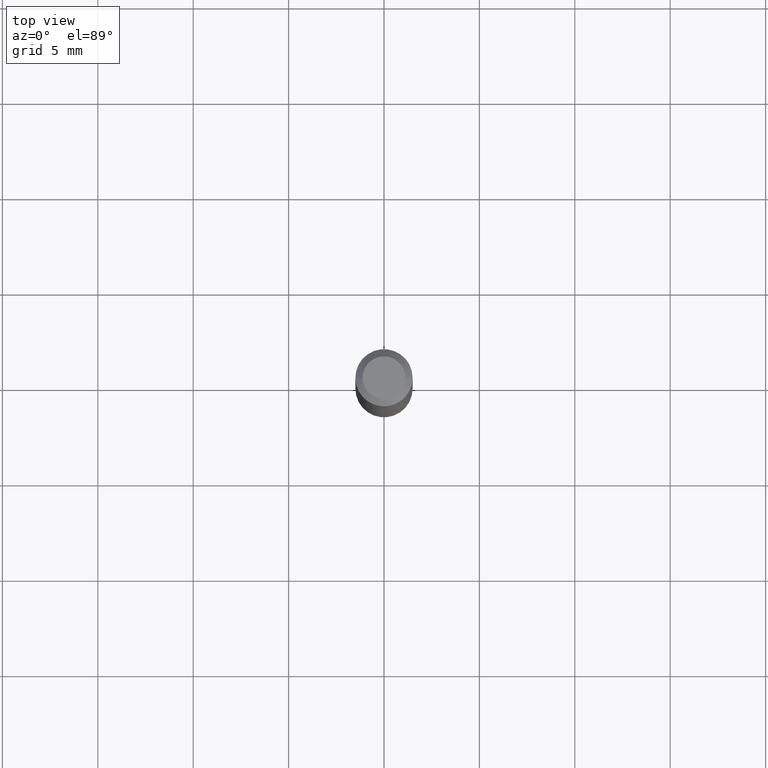
[diagram: clean part render]
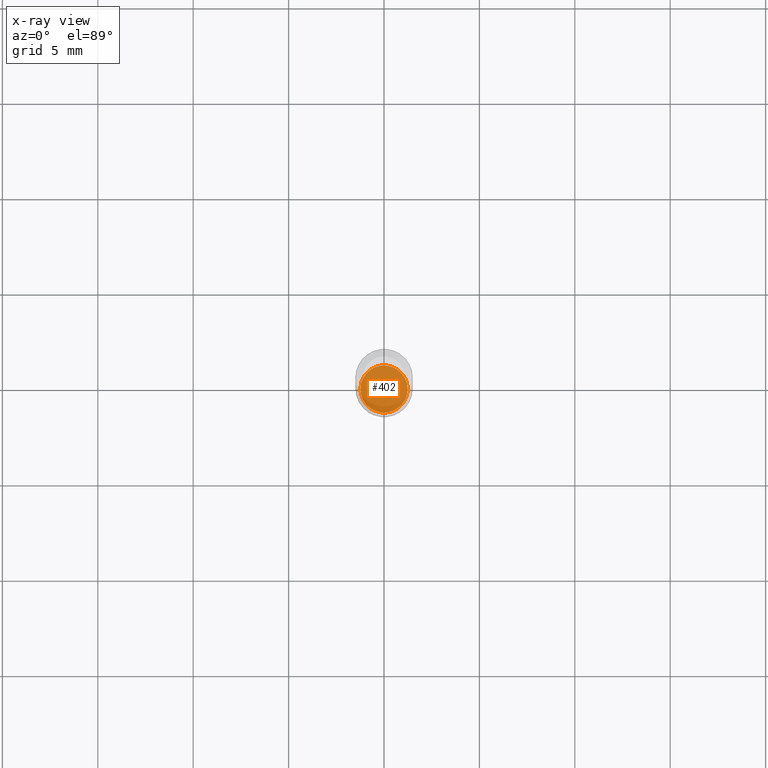
[diagram: x-ray — body ghosted, one internal face saturated and labeled with its STEP entity id]
A machine part, top view, then the same camera in x-ray: the body is ghosted and one INTERNAL B-rep face — a face not visible from any outside direction — is saturated and labeled: STEP entity #402.
In plain terms, the highlighted planar face has unit normal (-0, 0, 1).
Its self-contained STEP definition (entity closure, byte-faithful):
#66 = CARTESIAN_POINT ( 'NONE',  ( 3.307252013484778620E-29, -4.721879362651470602E-15, -1.352400000000000047 ) ) ;
#69 = DIRECTION ( 'NONE',  ( -2.445468806185136597E-29, 3.491481338843145583E-15, 1.000000000000000000 ) ) ;
#113 = VERTEX_POINT ( 'NONE', #277 ) ;
#118 = EDGE_CURVE ( 'NONE', #113, #436, #215, .T. ) ;
#123 = CARTESIAN_POINT ( 'NONE',  ( 0.04870000000000000023, -5.061949645054792119E-15, -1.352400000000000047 ) ) ;
#142 = CARTESIAN_POINT ( 'NONE',  ( 3.307252013484778620E-29, -4.721879362651470602E-15, -1.352400000000000047 ) ) ;
#155 = EDGE_CURVE ( 'NONE', #436, #113, #446, .T. ) ;
#182 = DIRECTION ( 'NONE',  ( 1.000000000000000000, -6.982962677686265922E-15, 4.876176775795935793E-29 ) ) ;
#200 = AXIS2_PLACEMENT_3D ( 'NONE', #142, #69, #214 ) ;
#214 = DIRECTION ( 'NONE',  ( 1.000000000000000000, -6.982962677686271444E-15, 0.000000000000000000 ) ) ;
#215 = CIRCLE ( 'NONE', #403, 0.04870000000000000023 ) ;
#249 = DIRECTION ( 'NONE',  ( 1.000000000000000000, -6.982962677686271444E-15, 0.000000000000000000 ) ) ;
#277 = CARTESIAN_POINT ( 'NONE',  ( -0.04870000000000000023, -4.373195823162190855E-15, -1.352400000000000047 ) ) ;
#290 = ORIENTED_EDGE ( 'NONE', *, *, #118, .F. ) ;
#306 = EDGE_LOOP ( 'NONE', ( #371, #290 ) ) ;
#310 = PLANE ( 'NONE',  #457 ) ;
#371 = ORIENTED_EDGE ( 'NONE', *, *, #155, .F. ) ;
#389 = DIRECTION ( 'NONE',  ( -2.438088387897960049E-29, 3.491481338843145188E-15, 1.000000000000000000 ) ) ;
#402 = ADVANCED_FACE ( 'NONE', ( #418 ), #310, .F. ) ;
#403 = AXIS2_PLACEMENT_3D ( 'NONE', #66, #452, #249 ) ;
#418 = FACE_OUTER_BOUND ( 'NONE', #306, .T. ) ;
#436 = VERTEX_POINT ( 'NONE', #123 ) ;
#446 = CIRCLE ( 'NONE', #200, 0.04870000000000000023 ) ;
#451 = CARTESIAN_POINT ( 'NONE',  ( 3.307252013484778620E-29, -4.721879362651470602E-15, -1.352400000000000047 ) ) ;
#452 = DIRECTION ( 'NONE',  ( -2.445468806185136597E-29, 3.491481338843145583E-15, 1.000000000000000000 ) ) ;
#457 = AXIS2_PLACEMENT_3D ( 'NONE', #451, #389, #182 ) ;